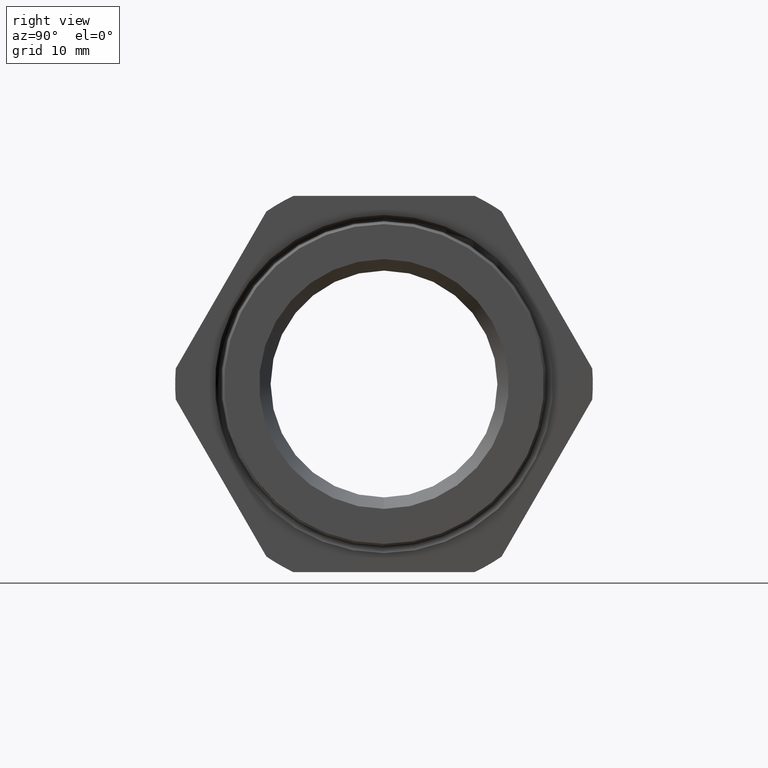
[diagram: clean part render]
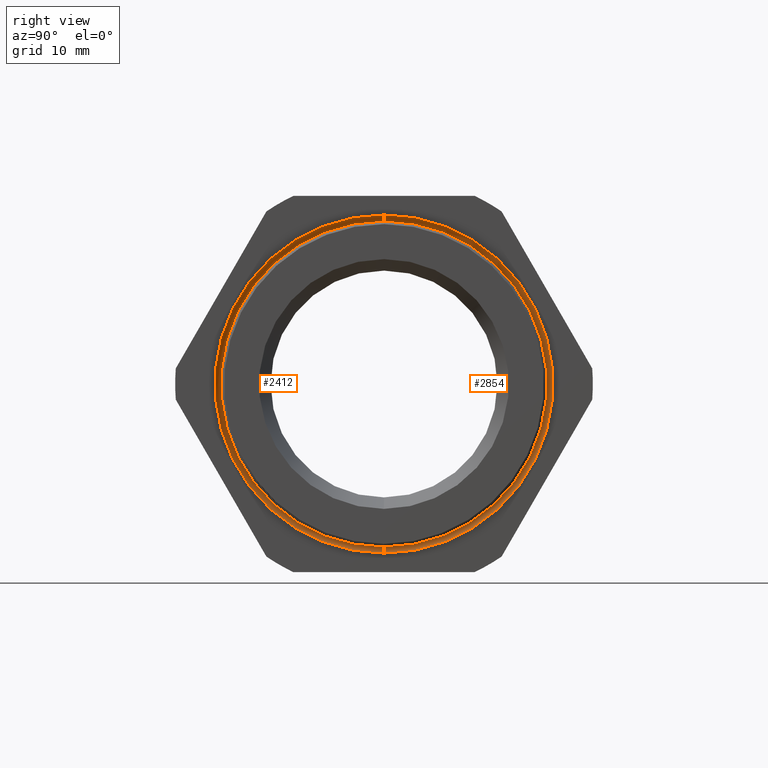
[diagram: same view with one multi-face feature highlighted, each face labeled with its STEP entity id]
A machine part, right view. The highlighted faces form ONE feature: a constant-radius fillet chain: 2 tangent blend faces with common blend radius 0.9525 mm. The faces share edges in the B-rep.
Their STEP definitions:
[1] entity #2412 (Torus):
#2412 = ADVANCED_FACE ( 'NONE', ( #3348 ), #3346, .F. ) ;
#2413 = EDGE_LOOP ( 'NONE', ( #2414, #2478, #2480, #2459 ) ) ;
#2414 = ORIENTED_EDGE ( 'NONE', *, *, #2440, .F. ) ;
#2415 = VERTEX_POINT ( 'NONE', #3342 ) ;
#2426 = VERTEX_POINT ( 'NONE', #3330 ) ;
#2431 = VERTEX_POINT ( 'NONE', #3323 ) ;
#2440 = EDGE_CURVE ( 'NONE', #2426, #2431, #3369, .T. ) ;
#2459 = ORIENTED_EDGE ( 'NONE', *, *, #2460, .F. ) ;
#2460 = EDGE_CURVE ( 'NONE', #2431, #2482, #3398, .T. ) ;
#2478 = ORIENTED_EDGE ( 'NONE', *, *, #2479, .T. ) ;
#2479 = EDGE_CURVE ( 'NONE', #2426, #2415, #3423, .T. ) ;
#2480 = ORIENTED_EDGE ( 'NONE', *, *, #2481, .F. ) ;
#2481 = EDGE_CURVE ( 'NONE', #2482, #2415, #3481, .T. ) ;
#2482 = VERTEX_POINT ( 'NONE', #3476 ) ;
#3323 = CARTESIAN_POINT ( 'NONE',  ( -0.3089999999999997200, 0.0000000000000000000, -0.8641842571584371600 ) ) ;
#3330 = CARTESIAN_POINT ( 'NONE',  ( -0.3089999999999997200, 1.058320484402613100E-016, 0.8641842571584371600 ) ) ;
#3342 = CARTESIAN_POINT ( 'NONE',  ( -0.3100000000000000000, 1.150152662810777000E-016, 0.9391709214538901400 ) ) ;
#3343 = DIRECTION ( 'NONE',  ( 0.0000000000000000000, 0.0000000000000000000, -1.000000000000000000 ) ) ;
#3344 = DIRECTION ( 'NONE',  ( 1.000000000000000000, 0.0000000000000000000, 0.0000000000000000000 ) ) ;
#3345 = AXIS2_PLACEMENT_3D ( 'NONE', #3347, #3344, #3343 ) ;
#3346 = TOROIDAL_SURFACE ( 'NONE', #3345, 0.9016842571584371400, 0.03749999999999999900 ) ;
#3347 = CARTESIAN_POINT ( 'NONE',  ( -0.3089999999999997200, 0.0000000000000000000, 0.0000000000000000000 ) ) ;
#3348 = FACE_OUTER_BOUND ( 'NONE', #2413, .T. ) ;
#3366 = DIRECTION ( 'NONE',  ( 0.0000000000000000000, 0.0000000000000000000, -1.000000000000000000 ) ) ;
#3367 = DIRECTION ( 'NONE',  ( 1.000000000000000000, 0.0000000000000000000, 0.0000000000000000000 ) ) ;
#3368 = AXIS2_PLACEMENT_3D ( 'NONE', #3374, #3367, #3366 ) ;
#3369 = CIRCLE ( 'NONE', #3368, 0.8641842571584371600 ) ;
#3374 = CARTESIAN_POINT ( 'NONE',  ( -0.3089999999999997200, 0.0000000000000000000, 0.0000000000000000000 ) ) ;
#3394 = DIRECTION ( 'NONE',  ( 0.0000000000000000000, 0.0000000000000000000, -1.000000000000000000 ) ) ;
#3395 = DIRECTION ( 'NONE',  ( 0.0000000000000000000, -1.000000000000000000, 0.0000000000000000000 ) ) ;
#3396 = CARTESIAN_POINT ( 'NONE',  ( -0.3089999999999997200, 0.0000000000000000000, -0.9016842571584371400 ) ) ;
#3397 = AXIS2_PLACEMENT_3D ( 'NONE', #3396, #3395, #3394 ) ;
#3398 = CIRCLE ( 'NONE', #3397, 0.03749999999999994300 ) ;
#3419 = DIRECTION ( 'NONE',  ( 0.0000000000000000000, 1.224646799147353700E-016, 1.000000000000000000 ) ) ;
#3420 = DIRECTION ( 'NONE',  ( 0.0000000000000000000, 1.000000000000000000, -1.224646799147353200E-016 ) ) ;
#3421 = CARTESIAN_POINT ( 'NONE',  ( -0.3089999999999997200, 1.104244739370638900E-016, 0.9016842571584371400 ) ) ;
#3422 = AXIS2_PLACEMENT_3D ( 'NONE', #3421, #3420, #3419 ) ;
#3423 = CIRCLE ( 'NONE', #3422, 0.03749999999999994300 ) ;
#3476 = CARTESIAN_POINT ( 'NONE',  ( -0.3100000000000000000, 0.0000000000000000000, -0.9391709214538901400 ) ) ;
#3477 = DIRECTION ( 'NONE',  ( 0.0000000000000000000, 0.0000000000000000000, -1.000000000000000000 ) ) ;
#3478 = DIRECTION ( 'NONE',  ( -1.000000000000000000, 0.0000000000000000000, 0.0000000000000000000 ) ) ;
#3479 = CARTESIAN_POINT ( 'NONE',  ( -0.3100000000000000000, 0.0000000000000000000, 0.0000000000000000000 ) ) ;
#3480 = AXIS2_PLACEMENT_3D ( 'NONE', #3479, #3478, #3477 ) ;
#3481 = CIRCLE ( 'NONE', #3480, 0.9391709214538901400 ) ;
[2] entity #2854 (Torus):
#69 = EDGE_CURVE ( 'NONE', #2415, #2482, #2999, .T. ) ;
#750 = DIRECTION ( 'NONE',  ( 0.0000000000000000000, 0.0000000000000000000, -1.000000000000000000 ) ) ;
#751 = DIRECTION ( 'NONE',  ( 1.000000000000000000, 0.0000000000000000000, 0.0000000000000000000 ) ) ;
#752 = CARTESIAN_POINT ( 'NONE',  ( -0.3089999999999997200, 0.0000000000000000000, 0.0000000000000000000 ) ) ;
#753 = AXIS2_PLACEMENT_3D ( 'NONE', #752, #751, #750 ) ;
#754 = TOROIDAL_SURFACE ( 'NONE', #753, 0.9016842571584371400, 0.03749999999999999900 ) ;
#758 = FACE_OUTER_BOUND ( 'NONE', #2855, .T. ) ;
#2415 = VERTEX_POINT ( 'NONE', #3342 ) ;
#2425 = EDGE_CURVE ( 'NONE', #2431, #2426, #3335, .T. ) ;
#2426 = VERTEX_POINT ( 'NONE', #3330 ) ;
#2431 = VERTEX_POINT ( 'NONE', #3323 ) ;
#2460 = EDGE_CURVE ( 'NONE', #2431, #2482, #3398, .T. ) ;
#2479 = EDGE_CURVE ( 'NONE', #2426, #2415, #3423, .T. ) ;
#2482 = VERTEX_POINT ( 'NONE', #3476 ) ;
#2854 = ADVANCED_FACE ( 'NONE', ( #758 ), #754, .F. ) ;
#2855 = EDGE_LOOP ( 'NONE', ( #2856, #2857, #2858, #2859 ) ) ;
#2856 = ORIENTED_EDGE ( 'NONE', *, *, #2425, .F. ) ;
#2857 = ORIENTED_EDGE ( 'NONE', *, *, #2460, .T. ) ;
#2858 = ORIENTED_EDGE ( 'NONE', *, *, #69, .F. ) ;
#2859 = ORIENTED_EDGE ( 'NONE', *, *, #2479, .F. ) ;
#2995 = DIRECTION ( 'NONE',  ( 0.0000000000000000000, 0.0000000000000000000, -1.000000000000000000 ) ) ;
#2996 = DIRECTION ( 'NONE',  ( -1.000000000000000000, 0.0000000000000000000, 0.0000000000000000000 ) ) ;
#2997 = CARTESIAN_POINT ( 'NONE',  ( -0.3100000000000000000, 0.0000000000000000000, 0.0000000000000000000 ) ) ;
#2998 = AXIS2_PLACEMENT_3D ( 'NONE', #2997, #2996, #2995 ) ;
#2999 = CIRCLE ( 'NONE', #2998, 0.9391709214538901400 ) ;
#3323 = CARTESIAN_POINT ( 'NONE',  ( -0.3089999999999997200, 0.0000000000000000000, -0.8641842571584371600 ) ) ;
#3330 = CARTESIAN_POINT ( 'NONE',  ( -0.3089999999999997200, 1.058320484402613100E-016, 0.8641842571584371600 ) ) ;
#3331 = DIRECTION ( 'NONE',  ( 0.0000000000000000000, 0.0000000000000000000, -1.000000000000000000 ) ) ;
#3332 = DIRECTION ( 'NONE',  ( 1.000000000000000000, 0.0000000000000000000, 0.0000000000000000000 ) ) ;
#3333 = CARTESIAN_POINT ( 'NONE',  ( -0.3089999999999997200, 0.0000000000000000000, 0.0000000000000000000 ) ) ;
#3334 = AXIS2_PLACEMENT_3D ( 'NONE', #3333, #3332, #3331 ) ;
#3335 = CIRCLE ( 'NONE', #3334, 0.8641842571584371600 ) ;
#3342 = CARTESIAN_POINT ( 'NONE',  ( -0.3100000000000000000, 1.150152662810777000E-016, 0.9391709214538901400 ) ) ;
#3394 = DIRECTION ( 'NONE',  ( 0.0000000000000000000, 0.0000000000000000000, -1.000000000000000000 ) ) ;
#3395 = DIRECTION ( 'NONE',  ( 0.0000000000000000000, -1.000000000000000000, 0.0000000000000000000 ) ) ;
#3396 = CARTESIAN_POINT ( 'NONE',  ( -0.3089999999999997200, 0.0000000000000000000, -0.9016842571584371400 ) ) ;
#3397 = AXIS2_PLACEMENT_3D ( 'NONE', #3396, #3395, #3394 ) ;
#3398 = CIRCLE ( 'NONE', #3397, 0.03749999999999994300 ) ;
#3419 = DIRECTION ( 'NONE',  ( 0.0000000000000000000, 1.224646799147353700E-016, 1.000000000000000000 ) ) ;
#3420 = DIRECTION ( 'NONE',  ( 0.0000000000000000000, 1.000000000000000000, -1.224646799147353200E-016 ) ) ;
#3421 = CARTESIAN_POINT ( 'NONE',  ( -0.3089999999999997200, 1.104244739370638900E-016, 0.9016842571584371400 ) ) ;
#3422 = AXIS2_PLACEMENT_3D ( 'NONE', #3421, #3420, #3419 ) ;
#3423 = CIRCLE ( 'NONE', #3422, 0.03749999999999994300 ) ;
#3476 = CARTESIAN_POINT ( 'NONE',  ( -0.3100000000000000000, 0.0000000000000000000, -0.9391709214538901400 ) ) ;